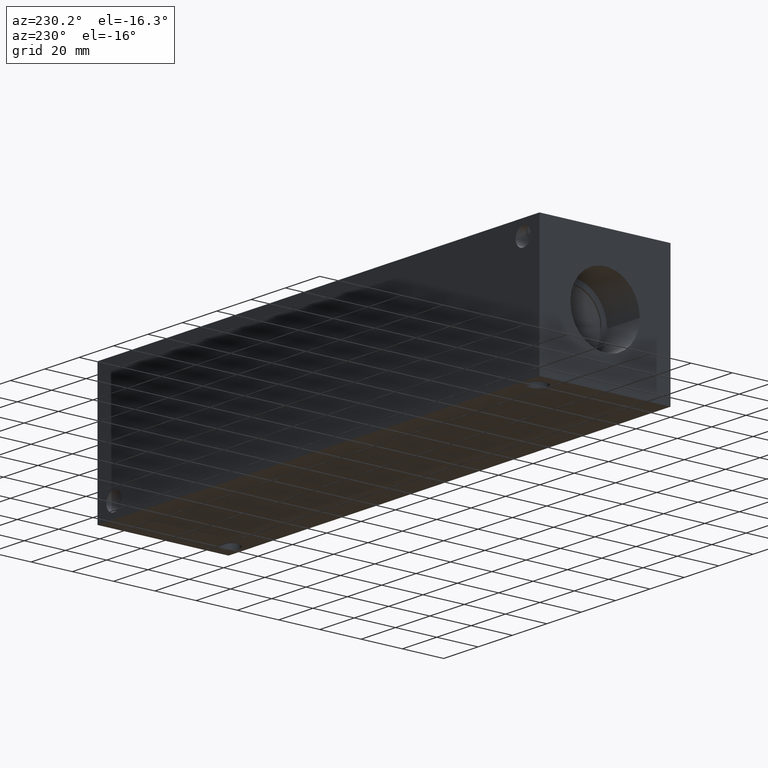
[diagram: clean part render]
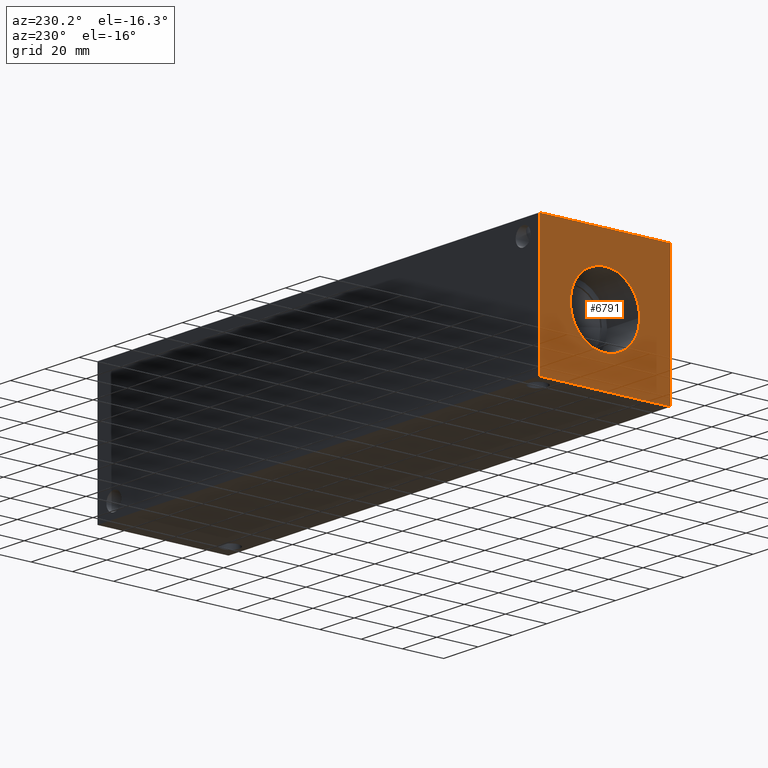
[diagram: same view with one face highlighted and labeled with its STEP entity id]
A machine part, auxiliary view. The second image highlights one B-rep face of the part: STEP entity #6791.
In plain terms, the highlighted planar face has unit normal (-1, 0, 0).
Its self-contained STEP definition (entity closure, byte-faithful):
#90=CIRCLE('',#7103,16.8529);
#91=CIRCLE('',#7104,16.8529);
#129=FACE_BOUND('',#1074,.T.);
#354=PLANE('',#7106);
#695=FACE_OUTER_BOUND('',#1073,.T.);
#1073=EDGE_LOOP('',(#6026,#6027,#6028,#6029));
#1074=EDGE_LOOP('',(#6030,#6031));
#1363=LINE('',#10445,#2048);
#1764=LINE('',#11517,#2449);
#1765=LINE('',#11518,#2450);
#1766=LINE('',#11519,#2451);
#2048=VECTOR('',#7536,10.);
#2449=VECTOR('',#8383,10.);
#2450=VECTOR('',#8384,10.);
#2451=VECTOR('',#8385,10.);
#2945=VERTEX_POINT('',#10438);
#2948=VERTEX_POINT('',#10443);
#3265=VERTEX_POINT('',#11507);
#3266=VERTEX_POINT('',#11508);
#3267=VERTEX_POINT('',#11515);
#3268=VERTEX_POINT('',#11516);
#3721=EDGE_CURVE('',#2948,#2945,#1363,.T.);
#4189=EDGE_CURVE('',#3265,#3266,#90,.T.);
#4190=EDGE_CURVE('',#3266,#3265,#91,.T.);
#4193=EDGE_CURVE('',#3267,#3268,#1764,.T.);
#4194=EDGE_CURVE('',#3268,#2945,#1765,.T.);
#4195=EDGE_CURVE('',#3267,#2948,#1766,.T.);
#6026=ORIENTED_EDGE('',*,*,#4193,.T.);
#6027=ORIENTED_EDGE('',*,*,#4194,.T.);
#6028=ORIENTED_EDGE('',*,*,#3721,.F.);
#6029=ORIENTED_EDGE('',*,*,#4195,.F.);
#6030=ORIENTED_EDGE('',*,*,#4189,.T.);
#6031=ORIENTED_EDGE('',*,*,#4190,.T.);
#6791=ADVANCED_FACE('',(#695,#129),#354,.T.);
#7103=AXIS2_PLACEMENT_3D('',#11509,#8373,#8374);
#7104=AXIS2_PLACEMENT_3D('',#11510,#8375,#8376);
#7106=AXIS2_PLACEMENT_3D('',#11514,#8381,#8382);
#7536=DIRECTION('',(0.,-1.,0.));
#8373=DIRECTION('center_axis',(1.,0.,0.));
#8374=DIRECTION('ref_axis',(0.,1.,0.));
#8375=DIRECTION('center_axis',(1.,0.,0.));
#8376=DIRECTION('ref_axis',(0.,1.,0.));
#8381=DIRECTION('center_axis',(-1.,0.,0.));
#8382=DIRECTION('ref_axis',(0.,-1.,0.));
#8383=DIRECTION('',(0.,-1.,0.));
#8384=DIRECTION('',(0.,0.,1.));
#8385=DIRECTION('',(0.,0.,1.));
#10438=CARTESIAN_POINT('',(0.,0.,63.5));
#10443=CARTESIAN_POINT('',(0.,63.5,63.5));
#10445=CARTESIAN_POINT('',(0.,63.5,63.5));
#11507=CARTESIAN_POINT('',(0.,48.6029,31.75));
#11508=CARTESIAN_POINT('',(0.,14.8971,31.75));
#11509=CARTESIAN_POINT('Origin',(0.,31.75,31.75));
#11510=CARTESIAN_POINT('Origin',(0.,31.75,31.75));
#11514=CARTESIAN_POINT('Origin',(0.,63.5,0.));
#11515=CARTESIAN_POINT('',(0.,63.5,0.));
#11516=CARTESIAN_POINT('',(0.,0.,0.));
#11517=CARTESIAN_POINT('',(0.,63.5,0.));
#11518=CARTESIAN_POINT('',(0.,0.,0.));
#11519=CARTESIAN_POINT('',(0.,63.5,0.));